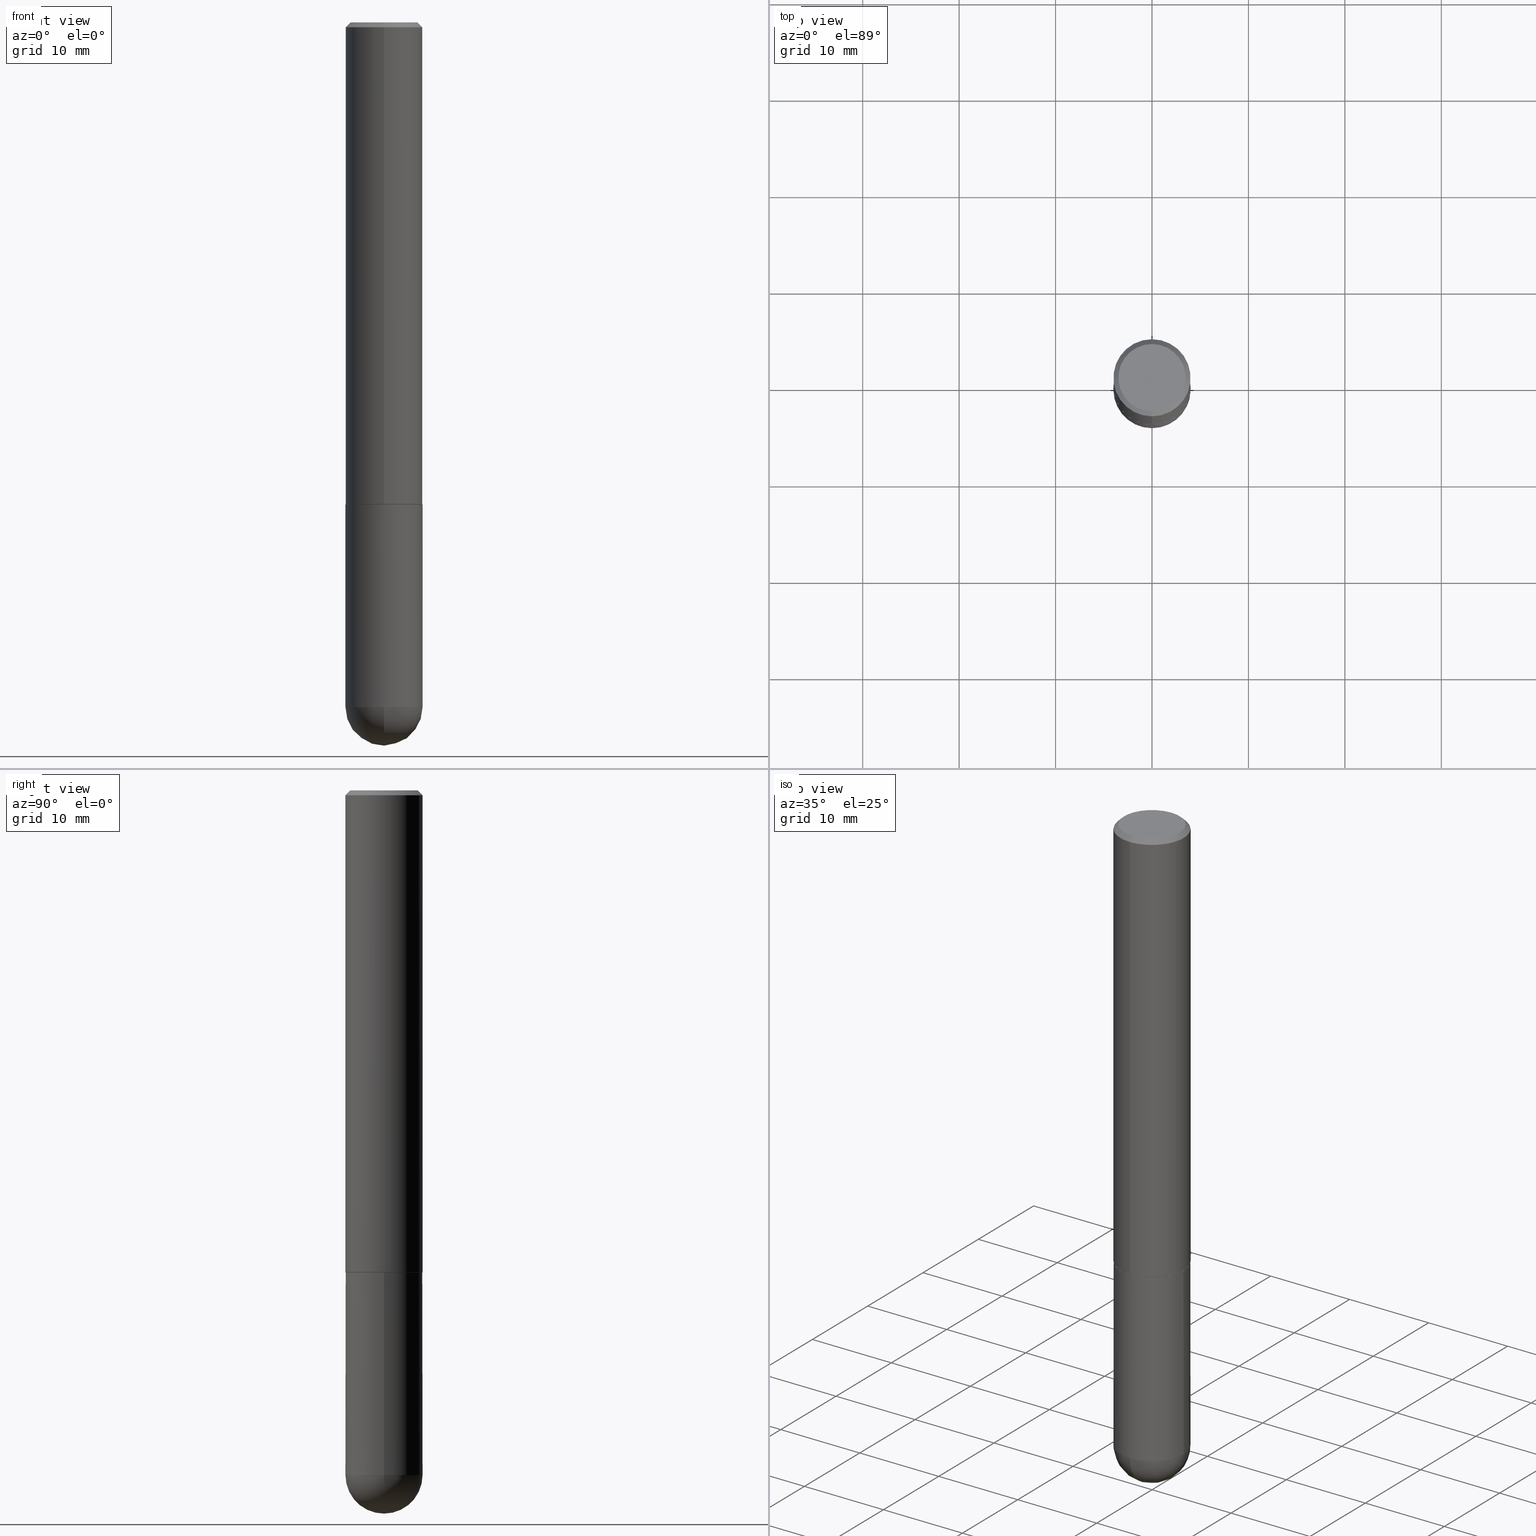
[diagram: canonical four-view strip — front | top / right | iso, engineering-drawing reading convention]
A machine part, canonical four-view strip (front | top / right | iso — engineering-drawing reading convention). The complete STEP part file that produces these views, byte-faithful:
ISO-10303-21;
HEADER;
FILE_DESCRIPTION (( 'STEP AP203' ),
    '1' );
FILE_NAME ('49574.STEP',
    '2024-04-10T12:28:47',
    ( '' ),
    ( '' ),
    'SwSTEP 2.0',
    'SolidWorks 2023',
    '' );
FILE_SCHEMA (( 'CONFIG_CONTROL_DESIGN' ));
ENDSEC;

DATA;
#1 = ORIENTED_EDGE ( 'NONE', *, *, #280, .T. ) ;
#2 = AXIS2_PLACEMENT_3D ( 'NONE', #135, #239, #338 ) ;
#3 = ORIENTED_EDGE ( 'NONE', *, *, #410, .T. ) ;
#4 = ORIENTED_EDGE ( 'NONE', *, *, #24, .F. ) ;
#5 = EDGE_CURVE ( 'NONE', #223, #254, #172, .T. ) ;
#6 = LENGTH_MEASURE_WITH_UNIT ( LENGTH_MEASURE( 0.02539999999999999897 ), #331 );
#7 = CARTESIAN_POINT ( 'NONE',  ( -1.080528434649015385E-15, -0.1575000000000000289, -0.01999999999999948000 ) ) ;
#8 = COORDINATED_UNIVERSAL_TIME_OFFSET ( 5, 0, .BEHIND. ) ;
#9 = CARTESIAN_POINT ( 'NONE',  ( 4.821539756351049939E-29, -6.862048103899148447E-15, -1.968499999999999694 ) ) ;
#10 = EDGE_CURVE ( 'NONE', #254, #408, #122, .T. ) ;
#11 = DIRECTION ( 'NONE',  ( -6.982962677686265922E-15, -1.000000000000000000, 3.469013325287948560E-15 ) ) ;
#12 = APPROVAL_ROLE ( '' ) ;
#13 = EDGE_LOOP ( 'NONE', ( #63, #192, #325, #160 ) ) ;
#14 = CIRCLE ( 'NONE', #107, 0.1575000000000000011 ) ;
#15 = PRODUCT_DEFINITION_SHAPE ( 'NONE', 'NONE',  #229 ) ;
#16 = PERSON_AND_ORGANIZATION_ROLE ( 'design_supplier' ) ;
#17 = FACE_OUTER_BOUND ( 'NONE', #98, .T. ) ;
#18 = FACE_OUTER_BOUND ( 'NONE', #290, .T. ) ;
#19 = CARTESIAN_POINT ( 'NONE',  ( -0.1575000000000000011, 1.119104808822157801E-15, -7.747322767151475583E-30 ) ) ;
#20 = ADVANCED_FACE ( 'NONE', ( #168 ), #130, .T. ) ;
#21 = FACE_OUTER_BOUND ( 'NONE', #161, .T. ) ;
#22 = PERSON_AND_ORGANIZATION ( #115, #382 ) ;
#23 = AXIS2_PLACEMENT_3D ( 'NONE', #9, #139, #397 ) ;
#24 = EDGE_CURVE ( 'NONE', #157, #264, #350, .T. ) ;
#25 = CARTESIAN_POINT ( 'NONE',  ( -1.099816621735540149E-15, -0.1575000000000071065, -1.967499999999999138 ) ) ;
#26 = DIRECTION ( 'NONE',  ( 1.000000000000000000, 0.000000000000000000, 0.000000000000000000 ) ) ;
#27 = ORIENTED_EDGE ( 'NONE', *, *, #129, .T. ) ;
#28 = DIRECTION ( 'NONE',  ( -4.851104656540959542E-15, -0.7071067811865493491, -0.7071067811865454633 ) ) ;
#29 = COORDINATED_UNIVERSAL_TIME_OFFSET ( 5, 0, .BEHIND. ) ;
#30 = ORIENTED_EDGE ( 'NONE', *, *, #83, .T. ) ;
#31 = DIRECTION ( 'NONE',  ( -2.445468806185136597E-29, 3.491481338843145583E-15, 1.000000000000000000 ) ) ;
#32 = AXIS2_PLACEMENT_3D ( 'NONE', #326, #31, #158 ) ;
#33 = ORIENTED_EDGE ( 'NONE', *, *, #171, .F. ) ;
#34 = ORIENTED_EDGE ( 'NONE', *, *, #406, .F. ) ;
#35 = ORIENTED_EDGE ( 'NONE', *, *, #123, .F. ) ;
#36 = DIRECTION ( 'NONE',  ( -1.000000000000000000, 6.982962677686265922E-15, -4.883557194083112901E-29 ) ) ;
#37 = DIMENSIONAL_EXPONENTS ( 1.000000000000000000, 0.000000000000000000, 0.000000000000000000, 0.000000000000000000, 0.000000000000000000, 0.000000000000000000, 0.000000000000000000 ) ;
#38 = DIRECTION ( 'NONE',  ( -2.445468806185136877E-29, 3.491481338843145188E-15, 1.000000000000000000 ) ) ;
#39 = PERSON_AND_ORGANIZATION ( #115, #382 ) ;
#40 = CARTESIAN_POINT ( 'NONE',  ( 4.819090409256129249E-29, -6.858562176490512022E-15, -1.967499999999999805 ) ) ;
#41 = CARTESIAN_POINT ( 'NONE',  ( 4.821539756351049939E-29, -6.862048103899148447E-15, -1.968499999999999694 ) ) ;
#42 = ADVANCED_FACE ( 'NONE', ( #17 ), #141, .F. ) ;
#43 = DIRECTION ( 'NONE',  ( -2.445468806185136597E-29, 3.491481338843145583E-15, 1.000000000000000000 ) ) ;
#44 = DIRECTION ( 'NONE',  ( -6.982962677686265922E-15, -1.000000000000000000, 3.491179544618866730E-15 ) ) ;
#45 = EDGE_LOOP ( 'NONE', ( #227, #224, #230, #99 ) ) ;
#46 = DIRECTION ( 'NONE',  ( 5.024295867788490741E-15, 0.7071067811866103003, 0.7071067811864847341 ) ) ;
#47 = ADVANCED_FACE ( 'NONE', ( #70 ), #270, .T. ) ;
#48 = DIRECTION ( 'NONE',  ( 6.982962677686265922E-15, 1.000000000000000000, -3.496114991891766760E-15 ) ) ;
#49 = AXIS2_PLACEMENT_3D ( 'NONE', #41, #176, #212 ) ;
#50 = DIRECTION ( 'NONE',  ( -2.445468806185136597E-29, 3.491481338843145583E-15, 1.000000000000000000 ) ) ;
#51 = DIRECTION ( 'NONE',  ( 6.982962677686265922E-15, 1.000000000000000000, -3.485927408635585290E-15 ) ) ;
#52 = CC_DESIGN_APPROVAL ( #90, ( #215 ) ) ;
#53 = ADVANCED_FACE ( 'NONE', ( #72 ), #179, .T. ) ;
#54 = LINE ( 'NONE', #243, #236 ) ;
#55 = AXIS2_PLACEMENT_3D ( 'NONE', #40, #268, #11 ) ;
#56 = APPLICATION_PROTOCOL_DEFINITION ( 'international standard', 'config_control_design', 1994, #258 ) ;
#57 = ORIENTED_EDGE ( 'NONE', *, *, #5, .F. ) ;
#58 = CARTESIAN_POINT ( 'NONE',  ( 4.898694189841054360E-31, -6.971854817271180342E-17, -0.02000000000000003164 ) ) ;
#59 = ORIENTED_EDGE ( 'NONE', *, *, #218, .T. ) ;
#60 = DIRECTION ( 'NONE',  ( 1.000000000000000000, -6.982962677686261977E-15, 0.000000000000000000 ) ) ;
#61 = MANIFOLD_SOLID_BREP ( 'Body-Move/Copy2[2]', #316 ) ;
#62 = VERTEX_POINT ( 'NONE', #337 ) ;
#63 = ORIENTED_EDGE ( 'NONE', *, *, #196, .F. ) ;
#64 = EDGE_CURVE ( 'NONE', #228, #198, #330, .T. ) ;
#65 = ORIENTED_EDGE ( 'NONE', *, *, #375, .T. ) ;
#66 = DIRECTION ( 'NONE',  ( 6.982962677686265922E-15, 1.000000000000000000, -3.469013325287946588E-15 ) ) ;
#67 = AXIS2_PLACEMENT_3D ( 'NONE', #232, #364, #178 ) ;
#68 = CARTESIAN_POINT ( 'NONE',  ( 6.835818953929311707E-29, -9.759737786468243605E-15, -2.795299999999999674 ) ) ;
#69 = DIRECTION ( 'NONE',  ( 6.982962677686265922E-15, 1.000000000000000000, -3.496114991891766760E-15 ) ) ;
#70 = FACE_OUTER_BOUND ( 'NONE', #45, .T. ) ;
#71 = APPROVAL_STATUS ( 'not_yet_approved' ) ;
#72 = FACE_OUTER_BOUND ( 'NONE', #385, .T. ) ;
#73 = CARTESIAN_POINT ( 'NONE',  ( 4.813905344975440714E-29, -6.872981015512730918E-15, -1.968499999999999694 ) ) ;
#74 = AXIS2_PLACEMENT_3D ( 'NONE', #213, #277, #145 ) ;
#75 = CARTESIAN_POINT ( 'NONE',  ( -0.1575000000000000011, -7.197254592168330052E-15, -1.968499999999999694 ) ) ;
#76 = CARTESIAN_POINT ( 'NONE',  ( 4.819090409256129249E-29, -6.858562176490512022E-15, -1.967499999999999805 ) ) ;
#77 = EDGE_CURVE ( 'NONE', #223, #163, #110, .T. ) ;
#78 = LOCAL_TIME ( 8, 28, 47.00000000000000000, #321 ) ;
#79 = DIRECTION ( 'NONE',  ( 1.000000000000000000, -6.982962677686265922E-15, 4.876176775795935232E-29 ) ) ;
#80 = CARTESIAN_POINT ( 'NONE',  ( 9.601573681818595033E-16, 0.1374999999999997058, -3.473729641960488965E-16 ) ) ;
#81 = AXIS2_PLACEMENT_3D ( 'NONE', #76, #150, #114 ) ;
#82 = PLANE ( 'NONE',  #369 ) ;
#83 = EDGE_CURVE ( 'NONE', #62, #264, #391, .T. ) ;
#84 = CALENDAR_DATE ( 2024, 10, 4 ) ;
#85 = DIRECTION ( 'NONE',  ( -6.982962677686265922E-15, -1.000000000000000000, 3.496114991891766760E-15 ) ) ;
#86 = CONICAL_SURFACE ( 'NONE', #207, 0.1574999999999999456, 0.7853981633974476129 ) ;
#87 = DIRECTION ( 'NONE',  ( -2.445468806185136597E-29, 3.491481338843145583E-15, 1.000000000000000000 ) ) ;
#88 = VECTOR ( 'NONE', #307, 39.37007874015748143 ) ;
#89 = DIRECTION ( 'NONE',  ( -2.445468806185136597E-29, 3.491481338843145583E-15, 1.000000000000000000 ) ) ;
#90 = APPROVAL ( #119, 'UNSPECIFIED' ) ;
#91 = VERTEX_POINT ( 'NONE', #75 ) ;
#92 = APPROVAL_PERSON_ORGANIZATION ( #348, #90, #187 ) ;
#93 = ORIENTED_EDGE ( 'NONE', *, *, #196, .T. ) ;
#94 = APPLICATION_PROTOCOL_DEFINITION ( 'international standard', 'config_control_design', 1994, #363 ) ;
#95 = AXIS2_PLACEMENT_3D ( 'NONE', #301, #297, #111 ) ;
#96 = VERTEX_POINT ( 'NONE', #304 ) ;
#97 = EDGE_CURVE ( 'NONE', #96, #91, #162, .T. ) ;
#98 = EDGE_LOOP ( 'NONE', ( #105, #411 ) ) ;
#99 = ORIENTED_EDGE ( 'NONE', *, *, #280, .F. ) ;
#100 = CARTESIAN_POINT ( 'NONE',  ( 6.504699176015425459E-29, -1.023392015460829390E-14, -2.795299999999999674 ) ) ;
#101 = VECTOR ( 'NONE', #245, 39.37007874015748854 ) ;
#102 = DIRECTION ( 'NONE',  ( -6.982962677686265922E-15, -1.000000000000000000, 3.485927408635585290E-15 ) ) ;
#103 = APPROVAL_DATE_TIME ( #392, #276 ) ;
#104 = DESIGN_CONTEXT ( 'detailed design', #363, 'design' ) ;
#105 = ORIENTED_EDGE ( 'NONE', *, *, #77, .F. ) ;
#106 = PERSON_AND_ORGANIZATION ( #115, #382 ) ;
#107 = AXIS2_PLACEMENT_3D ( 'NONE', #231, #89, #296 ) ;
#108 = DIRECTION ( 'NONE',  ( -7.105427357601000281E-15, -1.000000000000000000, 0.000000000000000000 ) ) ;
#109 = CARTESIAN_POINT ( 'NONE',  ( 4.821539756351049939E-29, -6.862048103899148447E-15, -1.968499999999999694 ) ) ;
#110 = CIRCLE ( 'NONE', #210, 0.1565000000000000002 ) ;
#111 = DIRECTION ( 'NONE',  ( -6.982962677686265922E-15, -1.000000000000000000, 3.485927408635584895E-15 ) ) ;
#112 = DIRECTION ( 'NONE',  ( 6.982962677686265133E-15, 1.000000000000000000, 0.000000000000000000 ) ) ;
#113 = CARTESIAN_POINT ( 'NONE',  ( -1.119104808822091931E-15, -0.1575000000000101319, -2.795299999999998786 ) ) ;
#114 = DIRECTION ( 'NONE',  ( -6.982962677686265922E-15, -1.000000000000000000, 3.469013325287948560E-15 ) ) ;
#115 = PERSON ( 'UNSPECIFIED', 'UNSPECIFIED', 'UNSPECIFIED', ('UNSPECIFIED'), ('UNSPECIFIED'), ('UNSPECIFIED') ) ;
#116 = UNCERTAINTY_MEASURE_WITH_UNIT (LENGTH_MEASURE( 1.000000000000000082E-05 ), #351, 'distance_accuracy_value', 'NONE');
#117 = PRODUCT_RELATED_PRODUCT_CATEGORY ( 'detail', '', ( #405 ) ) ;
#118 = FACE_OUTER_BOUND ( 'NONE', #356, .T. ) ;
#119 = APPROVAL_STATUS ( 'not_yet_approved' ) ;
#120 = DIRECTION ( 'NONE',  ( -2.445468806185136877E-29, 3.491481338843145188E-15, 1.000000000000000000 ) ) ;
#121 = PERSON_AND_ORGANIZATION_ROLE ( 'design_owner' ) ;
#122 = CIRCLE ( 'NONE', #55, 0.1575000000000002232 ) ;
#123 = EDGE_CURVE ( 'NONE', #201, #62, #407, .T. ) ;
#124 = EDGE_LOOP ( 'NONE', ( #138, #358, #253, #193, #283 ) ) ;
#125 =( NAMED_UNIT ( * ) SI_UNIT ( $, .STERADIAN. ) SOLID_ANGLE_UNIT ( ) );
#126 = VERTEX_POINT ( 'NONE', #399 ) ;
#127 = VECTOR ( 'NONE', #402, 39.37007874015748143 ) ;
#128 = ORIENTED_EDGE ( 'NONE', *, *, #166, .F. ) ;
#129 = EDGE_CURVE ( 'NONE', #126, #96, #361, .T. ) ;
#130 = CONICAL_SURFACE ( 'NONE', #362, 0.1565000000000000002, 0.7853981633975336552 ) ;
#131 = ORIENTED_EDGE ( 'NONE', *, *, #293, .F. ) ;
#132 = PERSON_AND_ORGANIZATION_ROLE ( 'creator' ) ;
#133 = VERTEX_POINT ( 'NONE', #7 ) ;
#134 = FACE_OUTER_BOUND ( 'NONE', #257, .T. ) ;
#135 = CARTESIAN_POINT ( 'NONE',  ( -6.463437757324325613E-45, 9.198808482061246702E-31, 2.638841089826859233E-16 ) ) ;
#136 = SHAPE_DEFINITION_REPRESENTATION ( #15, #137 ) ;
#137 = ADVANCED_BREP_SHAPE_REPRESENTATION ( '49574', ( #352, #61, #262 ), #314 ) ;
#138 = ORIENTED_EDGE ( 'NONE', *, *, #123, .T. ) ;
#139 = DIRECTION ( 'NONE',  ( -2.449347094920523449E-29, 3.485927408635585290E-15, 1.000000000000000000 ) ) ;
#140 = CC_DESIGN_SECURITY_CLASSIFICATION ( #248, ( #215 ) ) ;
#141 = PLANE ( 'NONE',  #294 ) ;
#142 = EDGE_CURVE ( 'NONE', #91, #96, #379, .T. ) ;
#143 = DIRECTION ( 'NONE',  ( -2.445468806185136597E-29, 3.491481338843145583E-15, 1.000000000000000000 ) ) ;
#144 = VECTOR ( 'NONE', #38, 39.37007874015748143 ) ;
#145 = DIRECTION ( 'NONE',  ( -6.982962677686265922E-15, -1.000000000000000000, 3.485927408635584895E-15 ) ) ;
#146 = LINE ( 'NONE', #19, #311 ) ;
#147 = LINE ( 'NONE', #183, #127 ) ;
#148 = CARTESIAN_POINT ( 'NONE',  ( 4.898694189841054360E-31, -6.971854817271180342E-17, -0.02000000000000003164 ) ) ;
#149 = CIRCLE ( 'NONE', #49, 0.1565000000000000002 ) ;
#150 = DIRECTION ( 'NONE',  ( -2.449347094920523449E-29, 3.485927408635585290E-15, 1.000000000000000000 ) ) ;
#151 = CALENDAR_DATE ( 2024, 10, 4 ) ;
#152 = LINE ( 'NONE', #409, #278 ) ;
#153 = EDGE_CURVE ( 'NONE', #163, #223, #149, .T. ) ;
#154 = ORIENTED_EDGE ( 'NONE', *, *, #64, .T. ) ;
#155 = CYLINDRICAL_SURFACE ( 'NONE', #32, 0.1575000000000000011 ) ;
#156 = AXIS2_PLACEMENT_3D ( 'NONE', #68, #43, #390 ) ;
#157 = VERTEX_POINT ( 'NONE', #404 ) ;
#158 = DIRECTION ( 'NONE',  ( 1.000000000000000000, -6.982962677686265922E-15, 4.876176775795935232E-29 ) ) ;
#159 = ADVANCED_FACE ( 'NONE', ( #118 ), #285, .T. ) ;
#160 = ORIENTED_EDGE ( 'NONE', *, *, #203, .F. ) ;
#161 = EDGE_LOOP ( 'NONE', ( #335, #206, #387, #1 ) ) ;
#162 = CIRCLE ( 'NONE', #219, 0.1575000000000000011 ) ;
#163 = VERTEX_POINT ( 'NONE', #313 ) ;
#164 = DIRECTION ( 'NONE',  ( -6.982962677686265922E-15, -1.000000000000000000, 3.496114991891766760E-15 ) ) ;
#165 = DIRECTION ( 'NONE',  ( -2.445468806185136597E-29, 3.491481338843145583E-15, 1.000000000000000000 ) ) ;
#166 = EDGE_CURVE ( 'NONE', #62, #91, #146, .T. ) ;
#167 = APPROVAL_PERSON_ORGANIZATION ( #366, #226, #12 ) ;
#168 = FACE_OUTER_BOUND ( 'NONE', #13, .T. ) ;
#169 = DIRECTION ( 'NONE',  ( -6.982962677686265922E-15, -1.000000000000000000, 3.491179544618866730E-15 ) ) ;
#170 = PERSON_AND_ORGANIZATION_ROLE ( 'classification_officer' ) ;
#171 = EDGE_CURVE ( 'NONE', #198, #287, #281, .T. ) ;
#172 = LINE ( 'NONE', #340, #88 ) ;
#173 = SECURITY_CLASSIFICATION_LEVEL ( 'unclassified' ) ;
#174 = CARTESIAN_POINT ( 'NONE',  ( 4.821539756351049939E-29, -6.862048103899148447E-15, -1.968499999999999694 ) ) ;
#175 = CC_DESIGN_DATE_AND_TIME_ASSIGNMENT ( #303, #398, ( #248 ) ) ;
#176 = DIRECTION ( 'NONE',  ( -2.449347094920523449E-29, 3.485927408635585290E-15, 1.000000000000000000 ) ) ;
#177 = CALENDAR_DATE ( 2024, 10, 4 ) ;
#178 = DIRECTION ( 'NONE',  ( 1.000000000000000000, -6.982962677686268288E-15, 0.000000000000000000 ) ) ;
#179 = CONICAL_SURFACE ( 'NONE', #23, 0.1565000000000000002, 0.7853981633975336552 ) ;
#180 = LINE ( 'NONE', #249, #343 ) ;
#181 = SPHERICAL_SURFACE ( 'NONE', #217, 0.1575000000000003064 ) ;
#182 = AXIS2_PLACEMENT_3D ( 'NONE', #376, #378, #85 ) ;
#183 = CARTESIAN_POINT ( 'NONE',  ( 1.119104808822158195E-15, 0.1575000000000000844, -5.490335668601049435E-16 ) ) ;
#184 = DIRECTION ( 'NONE',  ( -1.000000000000000000, 6.982962677686265922E-15, -4.883557194083112901E-29 ) ) ;
#185 = AXIS2_PLACEMENT_3D ( 'NONE', #373, #394, #108 ) ;
#186 = CIRCLE ( 'NONE', #221, 0.1575000000000000011 ) ;
#187 = APPROVAL_ROLE ( '' ) ;
#188 = MECHANICAL_CONTEXT ( 'NONE', #258, 'mechanical' ) ;
#189 = ORIENTED_EDGE ( 'NONE', *, *, #10, .T. ) ;
#190 = FACE_OUTER_BOUND ( 'NONE', #359, .T. ) ;
#191 = ORIENTED_EDGE ( 'NONE', *, *, #64, .F. ) ;
#192 = ORIENTED_EDGE ( 'NONE', *, *, #153, .T. ) ;
#193 = ORIENTED_EDGE ( 'NONE', *, *, #129, .F. ) ;
#194 = ORIENTED_EDGE ( 'NONE', *, *, #375, .F. ) ;
#195 = CARTESIAN_POINT ( 'NONE',  ( 0.1575000000000000011, -1.099816621735586889E-15, 7.679978421878598033E-30 ) ) ;
#196 = EDGE_CURVE ( 'NONE', #163, #408, #180, .T. ) ;
#197 = DIRECTION ( 'NONE',  ( -6.982962677686265922E-15, -1.000000000000000000, 3.485927408635585290E-15 ) ) ;
#198 = VERTEX_POINT ( 'NONE', #209 ) ;
#199 = LOCAL_TIME ( 8, 28, 47.00000000000000000, #233 ) ;
#200 = AXIS2_PLACEMENT_3D ( 'NONE', #309, #346, #112 ) ;
#201 = VERTEX_POINT ( 'NONE', #400 ) ;
#202 = PERSON_AND_ORGANIZATION_ROLE ( 'creator' ) ;
#203 = EDGE_CURVE ( 'NONE', #408, #254, #265, .T. ) ;
#204 = AXIS2_PLACEMENT_3D ( 'NONE', #274, #315, #48 ) ;
#205 = DIRECTION ( 'NONE',  ( 1.000000000000000000, -6.982962677686268288E-15, 0.000000000000000000 ) ) ;
#206 = ORIENTED_EDGE ( 'NONE', *, *, #353, .F. ) ;
#207 = AXIS2_PLACEMENT_3D ( 'NONE', #148, #374, #69 ) ;
#208 = FACE_OUTER_BOUND ( 'NONE', #383, .T. ) ;
#209 = CARTESIAN_POINT ( 'NONE',  ( 1.029986994958723196E-15, 0.1374999999999997058, -2.154309097047059349E-16 ) ) ;
#210 = AXIS2_PLACEMENT_3D ( 'NONE', #395, #371, #169 ) ;
#211 = ADVANCED_FACE ( 'NONE', ( #18 ), #342, .T. ) ;
#212 = DIRECTION ( 'NONE',  ( -6.982962677686265922E-15, -1.000000000000000000, 3.491179544618866730E-15 ) ) ;
#213 = CARTESIAN_POINT ( 'NONE',  ( 0.000000000000000000, 0.000000000000000000, 0.000000000000000000 ) ) ;
#214 = DATE_TIME_ROLE ( 'creation_date' ) ;
#215 = PRODUCT_DEFINITION_FORMATION_WITH_SPECIFIED_SOURCE ( 'ANY', '', #405, .NOT_KNOWN. ) ;
#216 = CARTESIAN_POINT ( 'NONE',  ( 0.000000000000000000, 0.000000000000000000, 0.000000000000000000 ) ) ;
#217 = AXIS2_PLACEMENT_3D ( 'NONE', #282, #184, #318 ) ;
#218 = EDGE_CURVE ( 'NONE', #157, #201, #259, .T. ) ;
#219 = AXIS2_PLACEMENT_3D ( 'NONE', #73, #165, #205 ) ;
#220 = FACE_OUTER_BOUND ( 'NONE', #124, .T. ) ;
#221 = AXIS2_PLACEMENT_3D ( 'NONE', #380, #87, #60 ) ;
#222 = LOCAL_TIME ( 8, 28, 47.00000000000000000, #8 ) ;
#223 = VERTEX_POINT ( 'NONE', #240 ) ;
#224 = ORIENTED_EDGE ( 'NONE', *, *, #203, .T. ) ;
#225 = CARTESIAN_POINT ( 'NONE',  ( 1.099816621735634812E-15, 0.1574999999999931177, -1.968500000000000361 ) ) ;
#226 = APPROVAL ( #299, 'UNSPECIFIED' ) ;
#227 = ORIENTED_EDGE ( 'NONE', *, *, #247, .F. ) ;
#228 = VERTEX_POINT ( 'NONE', #312 ) ;
#229 = PRODUCT_DEFINITION ( 'UNKNOWN', '', #215, #104 ) ;
#230 = ORIENTED_EDGE ( 'NONE', *, *, #293, .T. ) ;
#231 = CARTESIAN_POINT ( 'NONE',  ( 6.835818953929311707E-29, -9.759737786468243605E-15, -2.795299999999999674 ) ) ;
#232 = CARTESIAN_POINT ( 'NONE',  ( 4.813905344975440714E-29, -6.872981015512730918E-15, -1.968499999999999694 ) ) ;
#233 = COORDINATED_UNIVERSAL_TIME_OFFSET ( 5, 0, .BEHIND. ) ;
#234 = CALENDAR_DATE ( 2024, 10, 4 ) ;
#235 = ORIENTED_EDGE ( 'NONE', *, *, #142, .F. ) ;
#236 = VECTOR ( 'NONE', #349, 39.37007874015748143 ) ;
#237 = DIRECTION ( 'NONE',  ( -2.449347094920523169E-29, 3.485927408635585290E-15, 1.000000000000000000 ) ) ;
#238 = AXIS2_PLACEMENT_3D ( 'NONE', #58, #288, #164 ) ;
#239 = DIRECTION ( 'NONE',  ( -2.449347094920523449E-29, 3.485927408635585290E-15, 1.000000000000000000 ) ) ;
#240 = CARTESIAN_POINT ( 'NONE',  ( -1.092833659057852359E-15, -0.1565000000000068558, -1.968499999999999250 ) ) ;
#241 = AXIS2_PLACEMENT_3D ( 'NONE', #100, #36, #66 ) ;
#242 = CC_DESIGN_DATE_AND_TIME_ASSIGNMENT ( #317, #214, ( #229 ) ) ;
#243 = CARTESIAN_POINT ( 'NONE',  ( -1.099816621735587480E-15, -0.1575000000000000844, 5.490335668601049435E-16 ) ) ;
#244 = CYLINDRICAL_SURFACE ( 'NONE', #291, 0.1575000000000000011 ) ;
#245 = DIRECTION ( 'NONE',  ( 4.937700262164543309E-15, 0.7071067811865444641, -0.7071067811865503483 ) ) ;
#246 = AXIS2_PLACEMENT_3D ( 'NONE', #225, #263, #284 ) ;
#247 = EDGE_CURVE ( 'NONE', #408, #287, #147, .T. ) ;
#248 = SECURITY_CLASSIFICATION ( '', '', #173 ) ;
#249 = CARTESIAN_POINT ( 'NONE',  ( 1.111999381464604716E-15, 0.1564999999999931168, -1.968500000000000361 ) ) ;
#250 = CC_DESIGN_PERSON_AND_ORGANIZATION_ASSIGNMENT ( #39, #16, ( #215 ) ) ;
#251 = PERSON_AND_ORGANIZATION ( #115, #382 ) ;
#252 = CC_DESIGN_PERSON_AND_ORGANIZATION_ASSIGNMENT ( #336, #202, ( #215 ) ) ;
#253 = ORIENTED_EDGE ( 'NONE', *, *, #97, .F. ) ;
#254 = VERTEX_POINT ( 'NONE', #25 ) ;
#255 = CIRCLE ( 'NONE', #182, 0.1574999999999999456 ) ;
#256 = CARTESIAN_POINT ( 'NONE',  ( 0.000000000000000000, 0.000000000000000000, 0.000000000000000000 ) ) ;
#257 = EDGE_LOOP ( 'NONE', ( #267, #260 ) ) ;
#258 = APPLICATION_CONTEXT ( 'configuration controlled 3d designs of mechanical parts and assemblies' ) ;
#259 = CIRCLE ( 'NONE', #200, 0.1575000000000003064 ) ;
#260 = ORIENTED_EDGE ( 'NONE', *, *, #142, .T. ) ;
#261 = ORIENTED_EDGE ( 'NONE', *, *, #247, .T. ) ;
#262 = AXIS2_PLACEMENT_3D ( 'NONE', #256, #384, #26 ) ;
#263 = DIRECTION ( 'NONE',  ( 2.438088387897960049E-29, -3.491481338843145188E-15, -1.000000000000000000 ) ) ;
#264 = VERTEX_POINT ( 'NONE', #113 ) ;
#265 = CIRCLE ( 'NONE', #81, 0.1575000000000002232 ) ;
#266 = COORDINATED_UNIVERSAL_TIME_OFFSET ( 5, 0, .BEHIND. ) ;
#267 = ORIENTED_EDGE ( 'NONE', *, *, #97, .T. ) ;
#268 = DIRECTION ( 'NONE',  ( -2.449347094920523449E-29, 3.485927408635585290E-15, 1.000000000000000000 ) ) ;
#269 = CIRCLE ( 'NONE', #238, 0.1574999999999999456 ) ;
#270 = CYLINDRICAL_SURFACE ( 'NONE', #95, 0.1575000000000000844 ) ;
#271 = CALENDAR_DATE ( 2024, 10, 4 ) ;
#272 = AXIS2_PLACEMENT_3D ( 'NONE', #332, #143, #273 ) ;
#273 = DIRECTION ( 'NONE',  ( 1.000000000000000000, -6.982962677686261977E-15, 0.000000000000000000 ) ) ;
#274 = CARTESIAN_POINT ( 'NONE',  ( 4.898694189841054360E-31, -6.971854817271180342E-17, -0.02000000000000003164 ) ) ;
#275 = APPROVAL_DATE_TIME ( #310, #90 ) ;
#276 = APPROVAL ( #71, 'UNSPECIFIED' ) ;
#277 = DIRECTION ( 'NONE',  ( -2.449347094920523449E-29, 3.485927408635585290E-15, 1.000000000000000000 ) ) ;
#278 = VECTOR ( 'NONE', #28, 39.37007874015748854 ) ;
#279 = CARTESIAN_POINT ( 'NONE',  ( 1.099816621735586889E-15, 0.1574999999999998901, -0.02000000000000057981 ) ) ;
#280 = EDGE_CURVE ( 'NONE', #287, #133, #255, .T. ) ;
#281 = LINE ( 'NONE', #344, #101 ) ;
#282 = CARTESIAN_POINT ( 'NONE',  ( 6.504699176015425459E-29, -1.023392015460829390E-14, -2.795299999999999674 ) ) ;
#283 = ORIENTED_EDGE ( 'NONE', *, *, #406, .T. ) ;
#284 = DIRECTION ( 'NONE',  ( -1.000000000000000000, 6.982962677686265922E-15, -4.876176775795935793E-29 ) ) ;
#285 = CONICAL_SURFACE ( 'NONE', #204, 0.1574999999999999456, 0.7853981633974476129 ) ;
#286 = ADVANCED_FACE ( 'NONE', ( #208 ), #244, .T. ) ;
#287 = VERTEX_POINT ( 'NONE', #279 ) ;
#288 = DIRECTION ( 'NONE',  ( -2.449347094920523449E-29, 3.485927408635585290E-15, 1.000000000000000000 ) ) ;
#289 = CC_DESIGN_APPROVAL ( #226, ( #248 ) ) ;
#290 = EDGE_LOOP ( 'NONE', ( #189, #261, #292, #131 ) ) ;
#291 = AXIS2_PLACEMENT_3D ( 'NONE', #216, #50, #79 ) ;
#292 = ORIENTED_EDGE ( 'NONE', *, *, #365, .F. ) ;
#293 = EDGE_CURVE ( 'NONE', #254, #133, #54, .T. ) ;
#294 = AXIS2_PLACEMENT_3D ( 'NONE', #109, #237, #102 ) ;
#295 = EDGE_LOOP ( 'NONE', ( #322, #386, #328, #35 ) ) ;
#296 = DIRECTION ( 'NONE',  ( 1.000000000000000000, -6.982962677686261977E-15, 0.000000000000000000 ) ) ;
#297 = DIRECTION ( 'NONE',  ( -2.449347094920523449E-29, 3.485927408635585290E-15, 1.000000000000000000 ) ) ;
#298 = APPROVAL_PERSON_ORGANIZATION ( #251, #276, #367 ) ;
#299 = APPROVAL_STATUS ( 'not_yet_approved' ) ;
#300 = ADVANCED_FACE ( 'NONE', ( #403 ), #82, .F. ) ;
#301 = CARTESIAN_POINT ( 'NONE',  ( 0.000000000000000000, 0.000000000000000000, 0.000000000000000000 ) ) ;
#302 = DIRECTION ( 'NONE',  ( -2.449347094920523449E-29, 3.485927408635585290E-15, 1.000000000000000000 ) ) ;
#303 = DATE_AND_TIME ( #271, #199 ) ;
#304 = CARTESIAN_POINT ( 'NONE',  ( 0.1575000000000000011, -7.972797637248318399E-15, -1.968499999999999694 ) ) ;
#305 = AXIS2_PLACEMENT_3D ( 'NONE', #354, #389, #197 ) ;
#306 = DATE_AND_TIME ( #177, #222 ) ;
#307 = DIRECTION ( 'NONE',  ( -4.937700262164969294E-15, -0.7071067811866054154, 0.7071067811864896191 ) ) ;
#308 = ADVANCED_FACE ( 'NONE', ( #341 ), #181, .T. ) ;
#309 = CARTESIAN_POINT ( 'NONE',  ( 6.504699176015425459E-29, -1.023392015460829390E-14, -2.795299999999999674 ) ) ;
#310 = DATE_AND_TIME ( #151, #78 ) ;
#311 = VECTOR ( 'NONE', #120, 39.37007874015748143 ) ;
#312 = CARTESIAN_POINT ( 'NONE',  ( -1.011923454671299265E-15, -0.1374999999999997058, 7.431991276700778061E-16 ) ) ;
#313 = CARTESIAN_POINT ( 'NONE',  ( 1.115552095143406206E-15, 0.1564999999999931168, -1.968500000000000361 ) ) ;
#314 =( GEOMETRIC_REPRESENTATION_CONTEXT ( 3 ) GLOBAL_UNCERTAINTY_ASSIGNED_CONTEXT ( ( #116 ) ) GLOBAL_UNIT_ASSIGNED_CONTEXT ( ( #351, #412, #125 ) ) REPRESENTATION_CONTEXT ( 'NONE', 'WORKASPACE' ) );
#315 = DIRECTION ( 'NONE',  ( 2.449347094920523449E-29, -3.485927408635585290E-15, -1.000000000000000000 ) ) ;
#316 = CLOSED_SHELL ( 'NONE', ( #53, #211, #159, #333, #47, #20, #42, #300 ) ) ;
#317 = DATE_AND_TIME ( #84, #347 ) ;
#318 = DIRECTION ( 'NONE',  ( 6.982962677686265922E-15, 1.000000000000000000, -3.469013325287946588E-15 ) ) ;
#319 = PERSON_AND_ORGANIZATION ( #115, #382 ) ;
#320 = CC_DESIGN_APPROVAL ( #276, ( #229 ) ) ;
#321 = COORDINATED_UNIVERSAL_TIME_OFFSET ( 5, 0, .BEHIND. ) ;
#322 = ORIENTED_EDGE ( 'NONE', *, *, #218, .F. ) ;
#323 = SPHERICAL_SURFACE ( 'NONE', #241, 0.1575000000000003064 ) ;
#324 = CC_DESIGN_PERSON_AND_ORGANIZATION_ASSIGNMENT ( #319, #121, ( #405 ) ) ;
#325 = ORIENTED_EDGE ( 'NONE', *, *, #5, .T. ) ;
#326 = CARTESIAN_POINT ( 'NONE',  ( 0.000000000000000000, 0.000000000000000000, 0.000000000000000000 ) ) ;
#327 = ORIENTED_EDGE ( 'NONE', *, *, #77, .T. ) ;
#328 = ORIENTED_EDGE ( 'NONE', *, *, #83, .F. ) ;
#329 = ORIENTED_EDGE ( 'NONE', *, *, #365, .T. ) ;
#330 = CIRCLE ( 'NONE', #2, 0.1374999999999997058 ) ;
#331 =( LENGTH_UNIT ( ) NAMED_UNIT ( * ) SI_UNIT ( $, .METRE. ) );
#332 = CARTESIAN_POINT ( 'NONE',  ( 6.835818953929311707E-29, -9.759737786468243605E-15, -2.795299999999999674 ) ) ;
#333 = ADVANCED_FACE ( 'NONE', ( #21 ), #86, .T. ) ;
#334 = CARTESIAN_POINT ( 'NONE',  ( 1.119104808822183241E-15, 0.1574999999999933675, -1.967500000000000249 ) ) ;
#335 = ORIENTED_EDGE ( 'NONE', *, *, #410, .F. ) ;
#336 = PERSON_AND_ORGANIZATION ( #115, #382 ) ;
#337 = CARTESIAN_POINT ( 'NONE',  ( -0.1575000000000000011, -7.197254592168330052E-15, -2.795299999999999674 ) ) ;
#338 = DIRECTION ( 'NONE',  ( -6.982962677686265922E-15, -1.000000000000000000, 3.485927408635585290E-15 ) ) ;
#339 = ADVANCED_FACE ( 'NONE', ( #220 ), #155, .T. ) ;
#340 = CARTESIAN_POINT ( 'NONE',  ( -1.092833659057852359E-15, -0.1565000000000068558, -1.968499999999999250 ) ) ;
#341 = FACE_OUTER_BOUND ( 'NONE', #295, .T. ) ;
#342 = CYLINDRICAL_SURFACE ( 'NONE', #74, 0.1575000000000000844 ) ;
#343 = VECTOR ( 'NONE', #46, 39.37007874015748143 ) ;
#344 = CARTESIAN_POINT ( 'NONE',  ( 1.099816621735586889E-15, 0.1574999999999998901, -0.02000000000000057981 ) ) ;
#345 = ADVANCED_FACE ( 'NONE', ( #134 ), #360, .F. ) ;
#346 = DIRECTION ( 'NONE',  ( 1.000000000000000000, -6.982962677686265922E-15, 4.883557194083112340E-29 ) ) ;
#347 = LOCAL_TIME ( 8, 28, 47.00000000000000000, #29 ) ;
#348 = PERSON_AND_ORGANIZATION ( #115, #382 ) ;
#349 = DIRECTION ( 'NONE',  ( -2.449347094920523449E-29, 3.485927408635585290E-15, 1.000000000000000000 ) ) ;
#350 = CIRCLE ( 'NONE', #185, 0.1575000000000003064 ) ;
#351 =( CONVERSION_BASED_UNIT ( 'INCH', #6 ) LENGTH_UNIT ( ) NAMED_UNIT ( #37 ) );
#352 = MANIFOLD_SOLID_BREP ( 'Body-Move/Copy2[1]', #372 ) ;
#353 = EDGE_CURVE ( 'NONE', #198, #228, #401, .T. ) ;
#354 = CARTESIAN_POINT ( 'NONE',  ( -6.463437757324325613E-45, 9.198808482061246702E-31, 2.638841089826859233E-16 ) ) ;
#355 = LOCAL_TIME ( 8, 28, 47.00000000000000000, #266 ) ;
#356 = EDGE_LOOP ( 'NONE', ( #191, #3, #329, #33 ) ) ;
#357 = EDGE_LOOP ( 'NONE', ( #381, #154 ) ) ;
#358 = ORIENTED_EDGE ( 'NONE', *, *, #166, .T. ) ;
#359 = EDGE_LOOP ( 'NONE', ( #4, #59, #34, #194 ) ) ;
#360 = PLANE ( 'NONE',  #246 ) ;
#361 = LINE ( 'NONE', #195, #144 ) ;
#362 = AXIS2_PLACEMENT_3D ( 'NONE', #174, #302, #44 ) ;
#363 = APPLICATION_CONTEXT ( 'configuration controlled 3d designs of mechanical parts and assemblies' ) ;
#364 = DIRECTION ( 'NONE',  ( -2.445468806185136597E-29, 3.491481338843145583E-15, 1.000000000000000000 ) ) ;
#365 = EDGE_CURVE ( 'NONE', #133, #287, #269, .T. ) ;
#366 = PERSON_AND_ORGANIZATION ( #115, #382 ) ;
#367 = APPROVAL_ROLE ( '' ) ;
#368 = ORIENTED_EDGE ( 'NONE', *, *, #10, .F. ) ;
#369 = AXIS2_PLACEMENT_3D ( 'NONE', #80, #377, #51 ) ;
#370 = APPROVAL_DATE_TIME ( #306, #226 ) ;
#371 = DIRECTION ( 'NONE',  ( -2.449347094920523449E-29, 3.485927408635585290E-15, 1.000000000000000000 ) ) ;
#372 = CLOSED_SHELL ( 'NONE', ( #339, #308, #396, #345, #286 ) ) ;
#373 = CARTESIAN_POINT ( 'NONE',  ( 6.504699176015425459E-29, -1.023392015460829390E-14, -2.795299999999999674 ) ) ;
#374 = DIRECTION ( 'NONE',  ( 2.449347094920523449E-29, -3.485927408635585290E-15, -1.000000000000000000 ) ) ;
#375 = EDGE_CURVE ( 'NONE', #264, #126, #186, .T. ) ;
#376 = CARTESIAN_POINT ( 'NONE',  ( 4.898694189841054360E-31, -6.971854817271180342E-17, -0.02000000000000003164 ) ) ;
#377 = DIRECTION ( 'NONE',  ( 2.449347094920523169E-29, -3.485927408635585290E-15, -1.000000000000000000 ) ) ;
#378 = DIRECTION ( 'NONE',  ( -2.449347094920523449E-29, 3.485927408635585290E-15, 1.000000000000000000 ) ) ;
#379 = CIRCLE ( 'NONE', #67, 0.1575000000000000011 ) ;
#380 = CARTESIAN_POINT ( 'NONE',  ( 6.835818953929311707E-29, -9.759737786468243605E-15, -2.795299999999999674 ) ) ;
#381 = ORIENTED_EDGE ( 'NONE', *, *, #353, .T. ) ;
#382 = ORGANIZATION ( 'UNSPECIFIED', 'UNSPECIFIED', '' ) ;
#383 = EDGE_LOOP ( 'NONE', ( #128, #30, #65, #27, #235 ) ) ;
#384 = DIRECTION ( 'NONE',  ( 0.000000000000000000, 0.000000000000000000, 1.000000000000000000 ) ) ;
#385 = EDGE_LOOP ( 'NONE', ( #327, #93, #368, #57 ) ) ;
#386 = ORIENTED_EDGE ( 'NONE', *, *, #24, .T. ) ;
#387 = ORIENTED_EDGE ( 'NONE', *, *, #171, .T. ) ;
#388 = CC_DESIGN_PERSON_AND_ORGANIZATION_ASSIGNMENT ( #22, #132, ( #229 ) ) ;
#389 = DIRECTION ( 'NONE',  ( -2.449347094920523449E-29, 3.485927408635585290E-15, 1.000000000000000000 ) ) ;
#390 = DIRECTION ( 'NONE',  ( 1.000000000000000000, -6.982962677686261977E-15, 0.000000000000000000 ) ) ;
#391 = CIRCLE ( 'NONE', #156, 0.1575000000000000011 ) ;
#392 = DATE_AND_TIME ( #234, #355 ) ;
#393 = CC_DESIGN_PERSON_AND_ORGANIZATION_ASSIGNMENT ( #106, #170, ( #248 ) ) ;
#394 = DIRECTION ( 'NONE',  ( -1.000000000000000000, 7.105427357601001070E-15, -4.926315508542082329E-29 ) ) ;
#395 = CARTESIAN_POINT ( 'NONE',  ( 4.821539756351049939E-29, -6.862048103899148447E-15, -1.968499999999999694 ) ) ;
#396 = ADVANCED_FACE ( 'NONE', ( #190 ), #323, .T. ) ;
#397 = DIRECTION ( 'NONE',  ( -6.982962677686265922E-15, -1.000000000000000000, 3.491179544618866730E-15 ) ) ;
#398 = DATE_TIME_ROLE ( 'classification_date' ) ;
#399 = CARTESIAN_POINT ( 'NONE',  ( 0.1575000000000000011, -9.416176022726072770E-15, -2.795299999999999674 ) ) ;
#400 = CARTESIAN_POINT ( 'NONE',  ( 1.099816621735654731E-15, 0.1574999999999901201, -2.795300000000000118 ) ) ;
#401 = CIRCLE ( 'NONE', #305, 0.1374999999999997058 ) ;
#402 = DIRECTION ( 'NONE',  ( -2.449347094920523449E-29, 3.485927408635585290E-15, 1.000000000000000000 ) ) ;
#403 = FACE_OUTER_BOUND ( 'NONE', #357, .T. ) ;
#404 = CARTESIAN_POINT ( 'NONE',  ( 6.896594947516873652E-29, -1.077418437193280573E-14, -2.952799999999999869 ) ) ;
#405 = PRODUCT ( '49574', '49574', '', ( #188 ) ) ;
#406 = EDGE_CURVE ( 'NONE', #126, #201, #14, .T. ) ;
#407 = CIRCLE ( 'NONE', #272, 0.1575000000000000011 ) ;
#408 = VERTEX_POINT ( 'NONE', #334 ) ;
#409 = CARTESIAN_POINT ( 'NONE',  ( -1.080528434649015385E-15, -0.1575000000000000289, -0.01999999999999948000 ) ) ;
#410 = EDGE_CURVE ( 'NONE', #228, #133, #152, .T. ) ;
#411 = ORIENTED_EDGE ( 'NONE', *, *, #153, .F. ) ;
#412 =( NAMED_UNIT ( * ) PLANE_ANGLE_UNIT ( ) SI_UNIT ( $, .RADIAN. ) );
ENDSEC;
END-ISO-10303-21;
